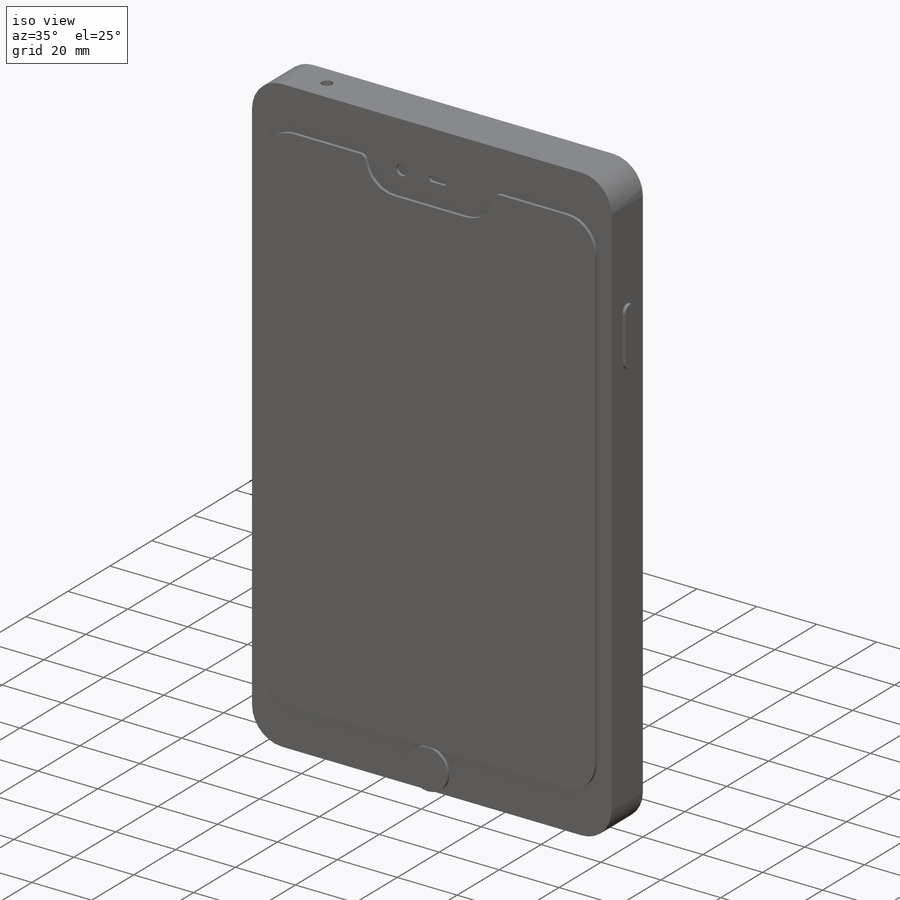
[diagram: iso view]
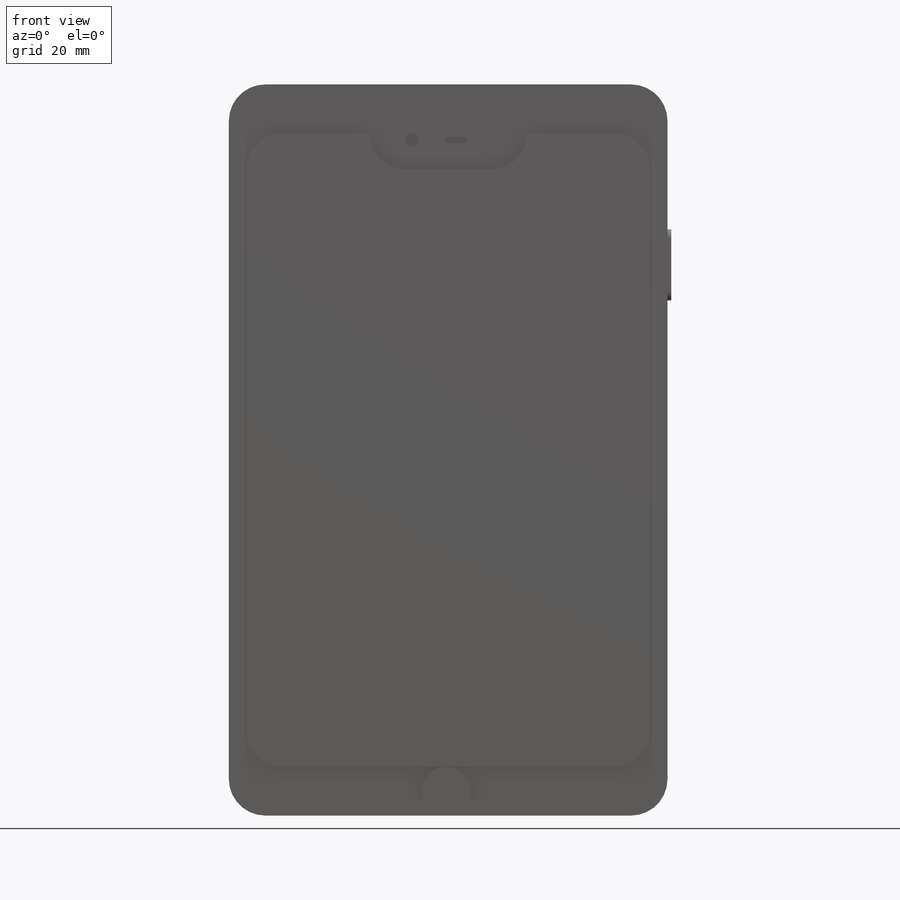
[diagram: front view]
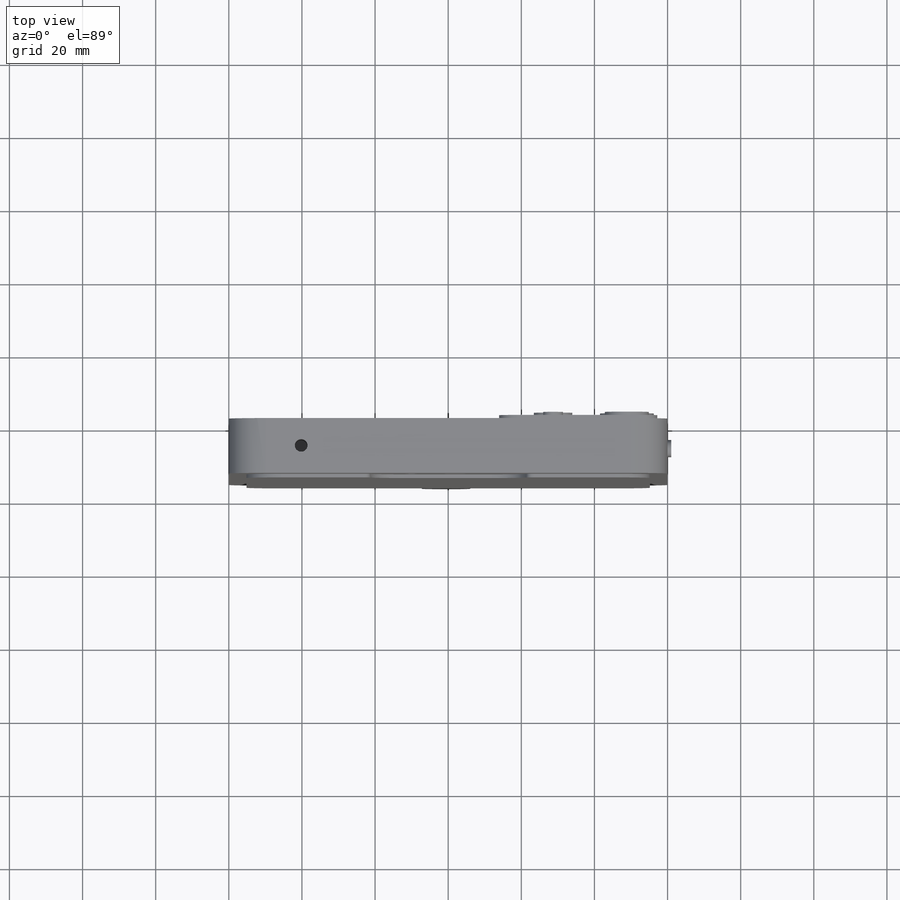
[diagram: top view]
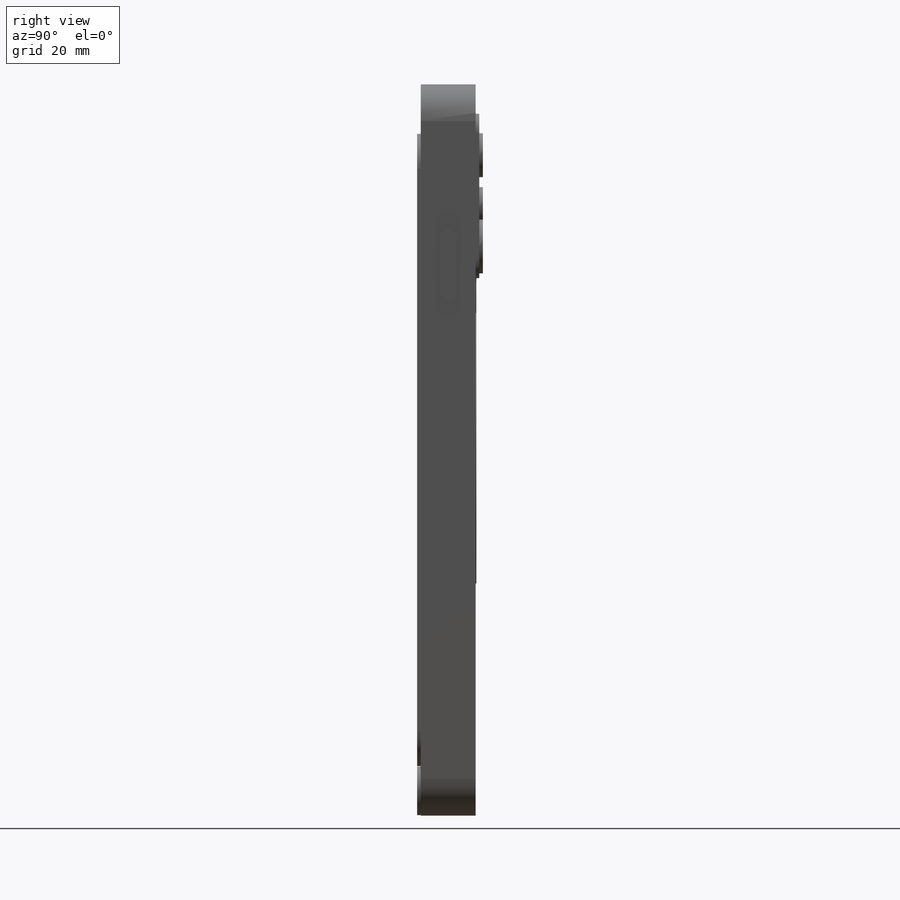
[diagram: right view]
SOLIDWORKS PART (.sldprt)
format: sldprt  version: not decoded by parser v0  size: 345,088 bytes
history: native  units: mm
features: sketch x12, extrude x7, cut_extrude x5, material x1 (+12 scaffold rows collapsed)
feature tree (37):
  scaffold x12  (default folders/planes/origin — collapsed)
  material  "Material <not specified>"
  sketch  "Sketch3"  dims[D3=10.0mm D1=120.0mm D2=200.0mm]
  extrude  "Boss-Extrude1"  Depth=15mm
  sketch  "Sketch4"  dims[D1=~9.481302mm]
  extrude  "Boss-Extrude2"  Depth=16mm
  sketch  "Sketch5"  dims[D1=~9.481302mm D2=2.0mm]
  cut_extrude  "Cut-Extrude1"  Depth=1mm
  sketch  "Sketch6"  dims[D1=6.76mm]
  extrude  "Boss-Extrude7"  Depth=16mm
  sketch  "Sketch7"  dims[c1.D1=7.5mm c1.D2=~23.537701mm c2.D1=6.0mm]
  cut_extrude  "Cut-Extrude3"  Depth=10mm
  sketch  "Sketch8"  dims[D1=4.0mm D2=1.0mm D3=12.0mm D4=8.0mm]
  cut_extrude  "Cut-Extrude6"  Depth=1mm
  sketch  "Sketch9"  dims[D1=7.5mm D2=15.0mm]
  extrude  "Boss-Extrude10"  Depth=1mm
  sketch  "Sketch10"  dims[D2=2.0mm D1=7.5mm]
  cut_extrude  "Cut-Extrude7"  Depth=7mm
  sketch  "Sketch11"  dims[D2=3.5mm D1=7.5mm]
  cut_extrude  "Cut-Extrude8"  Depth=20mm
  sketch  "Sketch12"  dims[D1=5.0mm]
  extrude  "Boss-Extrude13"  Depth=1mm
  sketch  "Sketch13"  dims[D1=12.0mm D2=25.0mm D3=14.0mm]
  extrude  "Boss-Extrude14"  Depth=1mm
  sketch  "Sketch14"  dims[D1=5.0mm D2=5.0mm]
  extrude  "Boss-Extrude19"  Depth=0.2mm
decode coverage: 24 of 24 modeling features carry decoded parameters
note: ~ marks probable driven/reference dimensions
note: suppression state not decoded; provenance and decode notes live in map.json
